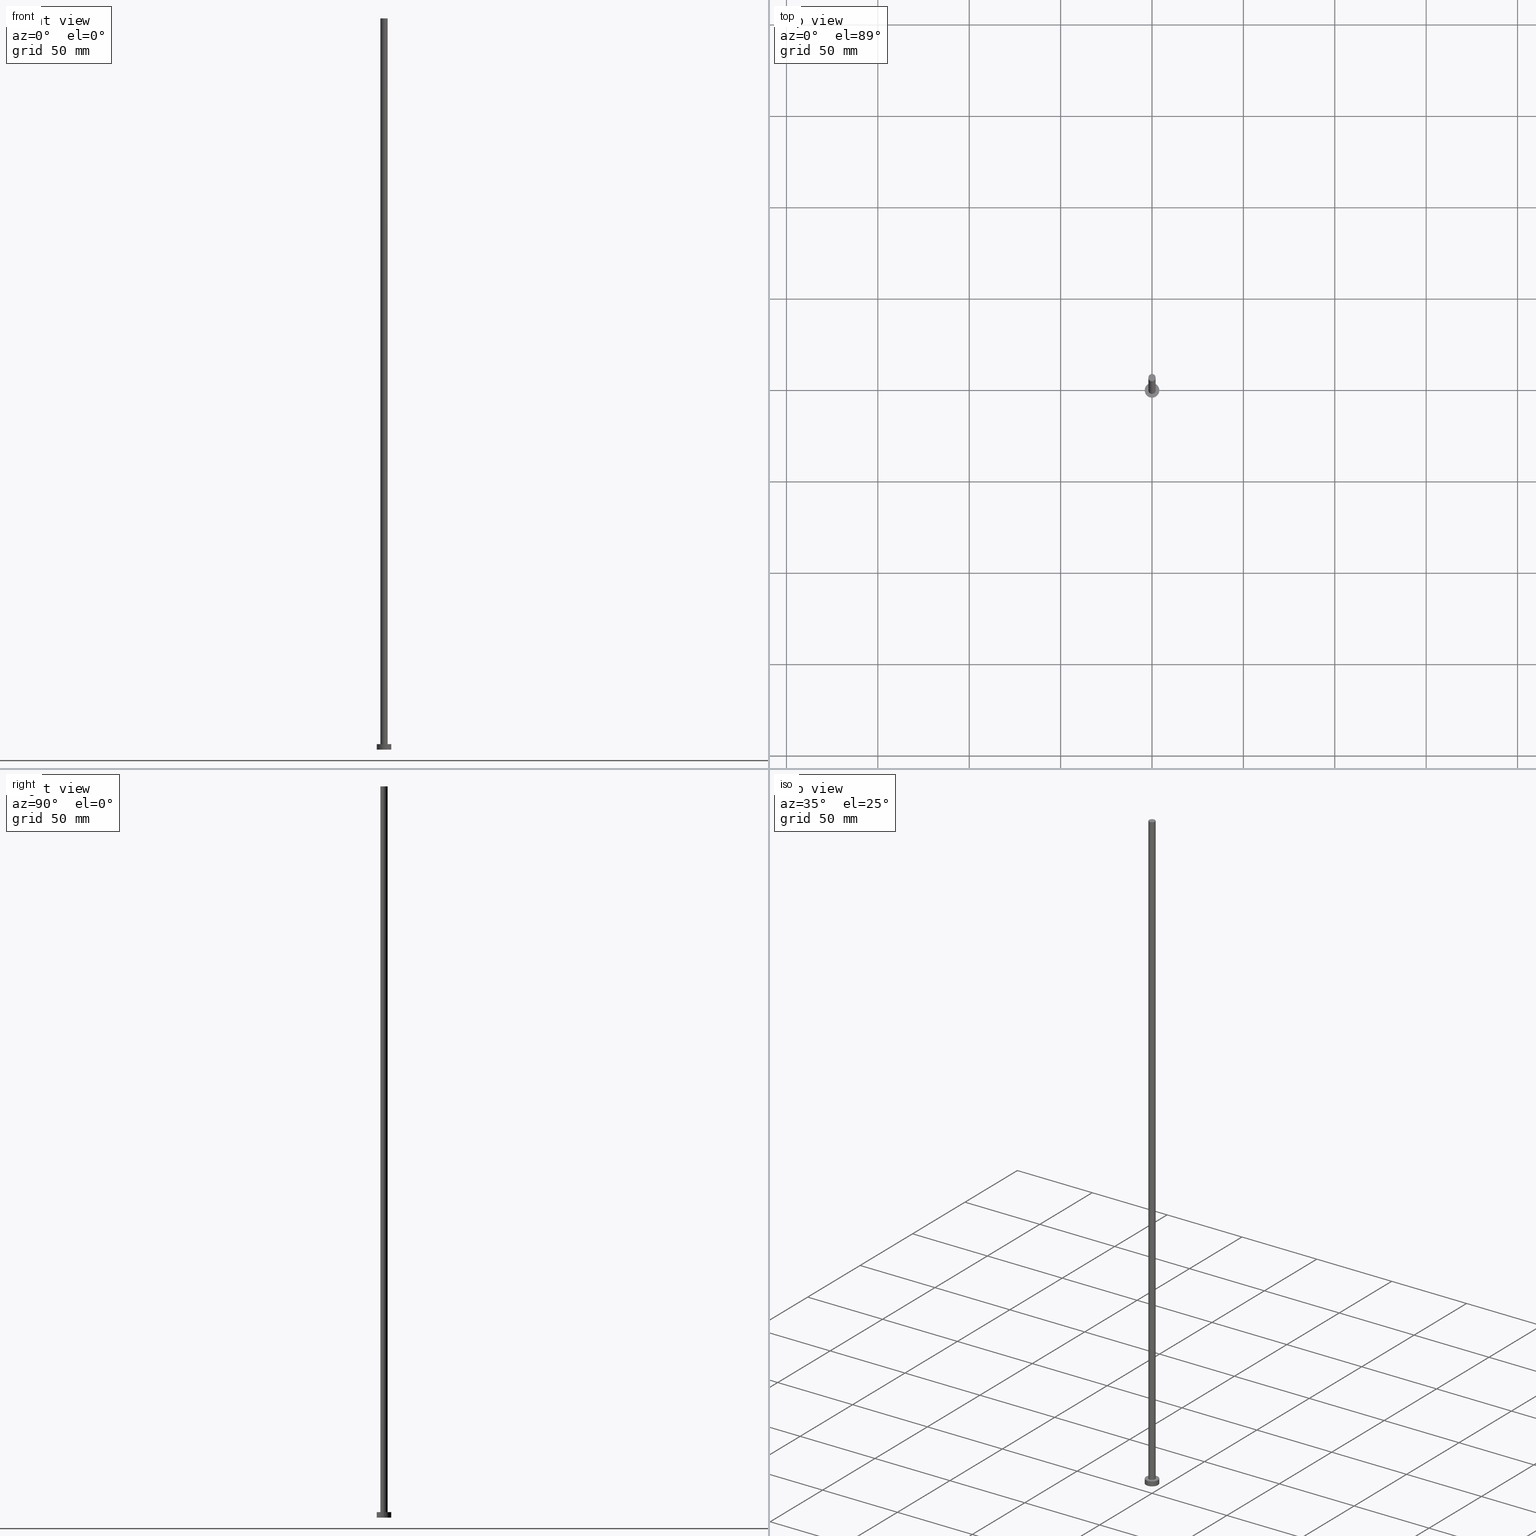
[diagram: canonical four-view strip — front | top / right | iso, engineering-drawing reading convention]
A machine part, canonical four-view strip (front | top / right | iso — engineering-drawing reading convention). The complete STEP part file that produces these views, byte-faithful:
ISO-10303-21;
HEADER;
FILE_DESCRIPTION (( 'STEP AP203' ),
    '1' );
FILE_NAME ('e3f3.STEP',
    '2023-02-13T13:57:01',
    ( '' ),
    ( '' ),
    'SwSTEP 2.0',
    'SolidWorks 2019',
    '' );
FILE_SCHEMA (( 'CONFIG_CONTROL_DESIGN' ));
ENDSEC;

DATA;
#1 = CYLINDRICAL_SURFACE ( 'NONE', #71, 4.000000000000000000 ) ;
#2 = FACE_BOUND ( 'NONE', #5, .T. ) ;
#3 = CARTESIAN_POINT ( 'NONE',  ( 0.000000000000000000, 0.000000000000000000, 3.000000000000000000 ) ) ;
#4 = DIRECTION ( 'NONE',  ( -0.000000000000000000, -0.000000000000000000, -1.000000000000000000 ) ) ;
#5 = EDGE_LOOP ( 'NONE', ( #96, #219 ) ) ;
#6 = PLANE ( 'NONE',  #126 ) ;
#7 = CARTESIAN_POINT ( 'NONE',  ( 0.000000000000000000, 0.000000000000000000, 400.0000000000000000 ) ) ;
#8 = VERTEX_POINT ( 'NONE', #247 ) ;
#9 = ORIENTED_EDGE ( 'NONE', *, *, #135, .T. ) ;
#10 = DIRECTION ( 'NONE',  ( 0.000000000000000000, 0.000000000000000000, 1.000000000000000000 ) ) ;
#11 = EDGE_CURVE ( 'NONE', #8, #79, #64, .T. ) ;
#12 = DESIGN_CONTEXT ( 'detailed design', #209, 'design' ) ;
#13 = PERSON_AND_ORGANIZATION_ROLE ( 'creator' ) ;
#14 =( GEOMETRIC_REPRESENTATION_CONTEXT ( 3 ) GLOBAL_UNCERTAINTY_ASSIGNED_CONTEXT ( ( #103 ) ) GLOBAL_UNIT_ASSIGNED_CONTEXT ( ( #221, #104, #167 ) ) REPRESENTATION_CONTEXT ( 'NONE', 'WORKASPACE' ) );
#15 = PERSON_AND_ORGANIZATION_ROLE ( 'classification_officer' ) ;
#16 = AXIS2_PLACEMENT_3D ( 'NONE', #107, #176, #128 ) ;
#17 = CARTESIAN_POINT ( 'NONE',  ( 2.000000000000000000, 2.449293598294706414E-16, 3.000000000000000000 ) ) ;
#18 = DIRECTION ( 'NONE',  ( -1.000000000000000000, 0.000000000000000000, 0.000000000000000000 ) ) ;
#19 = FACE_OUTER_BOUND ( 'NONE', #25, .T. ) ;
#20 = DIRECTION ( 'NONE',  ( -0.000000000000000000, -0.000000000000000000, -1.000000000000000000 ) ) ;
#21 = LINE ( 'NONE', #217, #249 ) ;
#22 = ORIENTED_EDGE ( 'NONE', *, *, #47, .T. ) ;
#23 = APPROVAL_PERSON_ORGANIZATION ( #229, #48, #191 ) ;
#24 = FACE_OUTER_BOUND ( 'NONE', #155, .T. ) ;
#25 = EDGE_LOOP ( 'NONE', ( #222, #140, #159, #243 ) ) ;
#26 = PLANE ( 'NONE',  #136 ) ;
#27 = VERTEX_POINT ( 'NONE', #120 ) ;
#28 = CC_DESIGN_PERSON_AND_ORGANIZATION_ASSIGNMENT ( #151, #15, ( #224 ) ) ;
#29 = CC_DESIGN_APPROVAL ( #177, ( #220 ) ) ;
#30 = CARTESIAN_POINT ( 'NONE',  ( 0.000000000000000000, 0.000000000000000000, 400.0000000000000000 ) ) ;
#31 = MECHANICAL_CONTEXT ( 'NONE', #171, 'mechanical' ) ;
#32 = CIRCLE ( 'NONE', #83, 4.000000000000000000 ) ;
#33 = ADVANCED_BREP_SHAPE_REPRESENTATION ( 'e3f3', ( #190, #226 ), #14 ) ;
#34 = CALENDAR_DATE ( 2023, 13, 2 ) ;
#35 = EDGE_CURVE ( 'NONE', #79, #43, #98, .T. ) ;
#36 = DIRECTION ( 'NONE',  ( 0.000000000000000000, 0.000000000000000000, 1.000000000000000000 ) ) ;
#37 = CARTESIAN_POINT ( 'NONE',  ( -4.000000000000000000, 0.000000000000000000, 3.000000000000000000 ) ) ;
#38 = CC_DESIGN_APPROVAL ( #44, ( #245 ) ) ;
#39 = DIRECTION ( 'NONE',  ( -1.000000000000000000, 0.000000000000000000, 0.000000000000000000 ) ) ;
#40 = ORIENTED_EDGE ( 'NONE', *, *, #207, .F. ) ;
#41 = DIRECTION ( 'NONE',  ( 1.000000000000000000, 0.000000000000000000, 0.000000000000000000 ) ) ;
#42 = ORIENTED_EDGE ( 'NONE', *, *, #82, .F. ) ;
#43 = VERTEX_POINT ( 'NONE', #180 ) ;
#44 = APPROVAL ( #88, 'NEUR�EN�' ) ;
#45 = CARTESIAN_POINT ( 'NONE',  ( 2.000000000000000000, 2.449293598294706414E-16, 400.0000000000000000 ) ) ;
#46 = CIRCLE ( 'NONE', #182, 2.000000000000000000 ) ;
#47 = EDGE_CURVE ( 'NONE', #43, #79, #237, .T. ) ;
#48 = APPROVAL ( #90, 'NEUR�EN�' ) ;
#49 = CALENDAR_DATE ( 2023, 13, 2 ) ;
#50 = COORDINATED_UNIVERSAL_TIME_OFFSET ( 1, 0, .AHEAD. ) ;
#51 = FACE_OUTER_BOUND ( 'NONE', #162, .T. ) ;
#52 = AXIS2_PLACEMENT_3D ( 'NONE', #255, #36, #70 ) ;
#53 = DATE_AND_TIME ( #34, #92 ) ;
#54 = CARTESIAN_POINT ( 'NONE',  ( -2.000000000000000000, 0.000000000000000000, 400.0000000000000000 ) ) ;
#55 = EDGE_CURVE ( 'NONE', #216, #119, #244, .T. ) ;
#56 = PERSON_AND_ORGANIZATION_ROLE ( 'creator' ) ;
#57 = CARTESIAN_POINT ( 'NONE',  ( 0.000000000000000000, 0.000000000000000000, 3.000000000000000000 ) ) ;
#58 = FACE_OUTER_BOUND ( 'NONE', #239, .T. ) ;
#59 = FACE_OUTER_BOUND ( 'NONE', #114, .T. ) ;
#60 = ORIENTED_EDGE ( 'NONE', *, *, #55, .T. ) ;
#61 = FACE_OUTER_BOUND ( 'NONE', #97, .T. ) ;
#62 = LOCAL_TIME ( 14, 57, 1.000000000000000000, #145 ) ;
#63 = CARTESIAN_POINT ( 'NONE',  ( 4.000000000000000000, 4.898587196589412829E-16, 0.000000000000000000 ) ) ;
#64 = LINE ( 'NONE', #45, #87 ) ;
#65 = AXIS2_PLACEMENT_3D ( 'NONE', #156, #4, #39 ) ;
#66 = CARTESIAN_POINT ( 'NONE',  ( 0.000000000000000000, 0.000000000000000000, 0.000000000000000000 ) ) ;
#67 = COORDINATED_UNIVERSAL_TIME_OFFSET ( 1, 0, .AHEAD. ) ;
#68 = APPROVAL_DATE_TIME ( #175, #44 ) ;
#69 = DATE_AND_TIME ( #193, #62 ) ;
#70 = DIRECTION ( 'NONE',  ( 1.000000000000000000, 0.000000000000000000, 0.000000000000000000 ) ) ;
#71 = AXIS2_PLACEMENT_3D ( 'NONE', #147, #197, #153 ) ;
#72 = EDGE_CURVE ( 'NONE', #134, #119, #149, .T. ) ;
#73 = PERSON_AND_ORGANIZATION ( #115, #144 ) ;
#74 = CYLINDRICAL_SURFACE ( 'NONE', #160, 2.000000000000000000 ) ;
#75 = EDGE_CURVE ( 'NONE', #200, #43, #111, .T. ) ;
#76 = CARTESIAN_POINT ( 'NONE',  ( -2.000000000000000000, 0.000000000000000000, 400.0000000000000000 ) ) ;
#77 = APPROVAL_PERSON_ORGANIZATION ( #228, #177, #227 ) ;
#78 = ORIENTED_EDGE ( 'NONE', *, *, #72, .T. ) ;
#79 = VERTEX_POINT ( 'NONE', #17 ) ;
#80 = DIRECTION ( 'NONE',  ( 0.000000000000000000, 0.000000000000000000, 1.000000000000000000 ) ) ;
#81 = ORIENTED_EDGE ( 'NONE', *, *, #55, .F. ) ;
#82 = EDGE_CURVE ( 'NONE', #119, #216, #201, .T. ) ;
#83 = AXIS2_PLACEMENT_3D ( 'NONE', #137, #102, #139 ) ;
#84 = ORIENTED_EDGE ( 'NONE', *, *, #75, .T. ) ;
#85 = APPLICATION_PROTOCOL_DEFINITION ( 'international standard', 'config_control_design', 1994, #171 ) ;
#86 = ADVANCED_FACE ( 'NONE', ( #51 ), #74, .T. ) ;
#87 = VECTOR ( 'NONE', #20, 1000.000000000000000 ) ;
#88 = APPROVAL_STATUS ( 'not_yet_approved' ) ;
#89 = SECURITY_CLASSIFICATION_LEVEL ( 'unclassified' ) ;
#90 = APPROVAL_STATUS ( 'not_yet_approved' ) ;
#91 = ADVANCED_FACE ( 'NONE', ( #178 ), #1, .T. ) ;
#92 = LOCAL_TIME ( 14, 57, 1.000000000000000000, #174 ) ;
#93 = CARTESIAN_POINT ( 'NONE',  ( 0.000000000000000000, 0.000000000000000000, 0.000000000000000000 ) ) ;
#94 = ORIENTED_EDGE ( 'NONE', *, *, #207, .T. ) ;
#95 = LOCAL_TIME ( 14, 57, 1.000000000000000000, #50 ) ;
#96 = ORIENTED_EDGE ( 'NONE', *, *, #47, .F. ) ;
#97 = EDGE_LOOP ( 'NONE', ( #184, #9 ) ) ;
#98 = CIRCLE ( 'NONE', #166, 2.000000000000000000 ) ;
#99 = EDGE_LOOP ( 'NONE', ( #138, #40, #78, #203 ) ) ;
#100 = AXIS2_PLACEMENT_3D ( 'NONE', #93, #179, #202 ) ;
#101 = ADVANCED_FACE ( 'NONE', ( #19 ), #199, .T. ) ;
#102 = DIRECTION ( 'NONE',  ( 0.000000000000000000, 0.000000000000000000, 1.000000000000000000 ) ) ;
#103 = UNCERTAINTY_MEASURE_WITH_UNIT (LENGTH_MEASURE( 1.000000000000000082E-05 ), #221, 'distance_accuracy_value', 'NONE');
#104 =( NAMED_UNIT ( * ) PLANE_ANGLE_UNIT ( ) SI_UNIT ( $, .RADIAN. ) );
#105 = CARTESIAN_POINT ( 'NONE',  ( 0.000000000000000000, 0.000000000000000000, 400.0000000000000000 ) ) ;
#106 = APPROVAL_STATUS ( 'not_yet_approved' ) ;
#107 = CARTESIAN_POINT ( 'NONE',  ( 0.000000000000000000, 0.000000000000000000, 0.000000000000000000 ) ) ;
#108 = PERSON_AND_ORGANIZATION ( #115, #144 ) ;
#109 = PRODUCT_DEFINITION_SHAPE ( 'NONE', 'NONE',  #220 ) ;
#110 = DATE_TIME_ROLE ( 'creation_date' ) ;
#111 = LINE ( 'NONE', #54, #211 ) ;
#112 = CIRCLE ( 'NONE', #185, 2.000000000000000000 ) ;
#113 = CC_DESIGN_PERSON_AND_ORGANIZATION_ASSIGNMENT ( #73, #146, ( #245 ) ) ;
#114 = EDGE_LOOP ( 'NONE', ( #42, #81 ) ) ;
#115 = PERSON ( 'NEUR�EN�', 'NEUR�EN�', 'NEUR�EN�', ('NEUR�EN�'), ('NEUR�EN�'), ('NEUR�EN�') ) ;
#116 = CARTESIAN_POINT ( 'NONE',  ( 0.000000000000000000, 0.000000000000000000, 3.000000000000000000 ) ) ;
#117 = DIRECTION ( 'NONE',  ( -0.000000000000000000, -0.000000000000000000, -1.000000000000000000 ) ) ;
#118 = ORIENTED_EDGE ( 'NONE', *, *, #152, .T. ) ;
#119 = VERTEX_POINT ( 'NONE', #240 ) ;
#120 = CARTESIAN_POINT ( 'NONE',  ( 4.000000000000000000, 4.898587196589412829E-16, 3.000000000000000000 ) ) ;
#121 = CC_DESIGN_SECURITY_CLASSIFICATION ( #224, ( #245 ) ) ;
#122 = APPLICATION_PROTOCOL_DEFINITION ( 'international standard', 'config_control_design', 1994, #209 ) ;
#123 = DATE_TIME_ROLE ( 'classification_date' ) ;
#124 = DATE_AND_TIME ( #148, #233 ) ;
#125 = LOCAL_TIME ( 14, 57, 1.000000000000000000, #173 ) ;
#126 = AXIS2_PLACEMENT_3D ( 'NONE', #57, #129, #214 ) ;
#127 = APPROVAL_ROLE ( '' ) ;
#128 = DIRECTION ( 'NONE',  ( 1.000000000000000000, 0.000000000000000000, 0.000000000000000000 ) ) ;
#129 = DIRECTION ( 'NONE',  ( 0.000000000000000000, 0.000000000000000000, 1.000000000000000000 ) ) ;
#130 = AXIS2_PLACEMENT_3D ( 'NONE', #154, #238, #158 ) ;
#131 = CYLINDRICAL_SURFACE ( 'NONE', #65, 4.000000000000000000 ) ;
#132 = ORIENTED_EDGE ( 'NONE', *, *, #11, .F. ) ;
#133 = CARTESIAN_POINT ( 'NONE',  ( 0.000000000000000000, 0.000000000000000000, 400.0000000000000000 ) ) ;
#134 = VERTEX_POINT ( 'NONE', #204 ) ;
#135 = EDGE_CURVE ( 'NONE', #8, #200, #112, .T. ) ;
#136 = AXIS2_PLACEMENT_3D ( 'NONE', #7, #80, #161 ) ;
#137 = CARTESIAN_POINT ( 'NONE',  ( 0.000000000000000000, 0.000000000000000000, 3.000000000000000000 ) ) ;
#138 = ORIENTED_EDGE ( 'NONE', *, *, #152, .F. ) ;
#139 = DIRECTION ( 'NONE',  ( 1.000000000000000000, 0.000000000000000000, 0.000000000000000000 ) ) ;
#140 = ORIENTED_EDGE ( 'NONE', *, *, #11, .T. ) ;
#141 = DIRECTION ( 'NONE',  ( 0.000000000000000000, 0.000000000000000000, 1.000000000000000000 ) ) ;
#142 = ADVANCED_FACE ( 'NONE', ( #58 ), #131, .T. ) ;
#143 = AXIS2_PLACEMENT_3D ( 'NONE', #133, #236, #218 ) ;
#144 = ORGANIZATION ( 'NEUR�EN�', 'NEUR�EN�', '' ) ;
#145 = COORDINATED_UNIVERSAL_TIME_OFFSET ( 1, 0, .AHEAD. ) ;
#146 = PERSON_AND_ORGANIZATION_ROLE ( 'design_supplier' ) ;
#147 = CARTESIAN_POINT ( 'NONE',  ( 0.000000000000000000, 0.000000000000000000, 3.000000000000000000 ) ) ;
#148 = CALENDAR_DATE ( 2023, 13, 2 ) ;
#149 = LINE ( 'NONE', #37, #223 ) ;
#150 = PRODUCT ( 'e3f3', 'e3f3', '', ( #31 ) ) ;
#151 = PERSON_AND_ORGANIZATION ( #115, #144 ) ;
#152 = EDGE_CURVE ( 'NONE', #27, #216, #21, .T. ) ;
#153 = DIRECTION ( 'NONE',  ( -1.000000000000000000, 0.000000000000000000, 0.000000000000000000 ) ) ;
#154 = CARTESIAN_POINT ( 'NONE',  ( 0.000000000000000000, 0.000000000000000000, 3.000000000000000000 ) ) ;
#155 = EDGE_LOOP ( 'NONE', ( #94, #198 ) ) ;
#156 = CARTESIAN_POINT ( 'NONE',  ( 0.000000000000000000, 0.000000000000000000, 3.000000000000000000 ) ) ;
#157 = DIRECTION ( 'NONE',  ( 0.000000000000000000, 0.000000000000000000, 1.000000000000000000 ) ) ;
#158 = DIRECTION ( 'NONE',  ( 1.000000000000000000, 0.000000000000000000, 0.000000000000000000 ) ) ;
#159 = ORIENTED_EDGE ( 'NONE', *, *, #35, .T. ) ;
#160 = AXIS2_PLACEMENT_3D ( 'NONE', #105, #196, #18 ) ;
#161 = DIRECTION ( 'NONE',  ( 1.000000000000000000, 0.000000000000000000, -0.000000000000000000 ) ) ;
#162 = EDGE_LOOP ( 'NONE', ( #132, #205, #84, #22 ) ) ;
#163 = CIRCLE ( 'NONE', #130, 4.000000000000000000 ) ;
#164 = CC_DESIGN_PERSON_AND_ORGANIZATION_ASSIGNMENT ( #108, #13, ( #245 ) ) ;
#165 = ORIENTED_EDGE ( 'NONE', *, *, #232, .F. ) ;
#166 = AXIS2_PLACEMENT_3D ( 'NONE', #116, #157, #186 ) ;
#167 =( NAMED_UNIT ( * ) SI_UNIT ( $, .STERADIAN. ) SOLID_ANGLE_UNIT ( ) );
#168 = ADVANCED_FACE ( 'NONE', ( #59 ), #242, .F. ) ;
#169 = PRODUCT_RELATED_PRODUCT_CATEGORY ( 'detail', '', ( #150 ) ) ;
#170 = DATE_AND_TIME ( #251, #95 ) ;
#171 = APPLICATION_CONTEXT ( 'configuration controlled 3d designs of mechanical parts and assemblies' ) ;
#172 = CC_DESIGN_APPROVAL ( #48, ( #224 ) ) ;
#173 = COORDINATED_UNIVERSAL_TIME_OFFSET ( 1, 0, .AHEAD. ) ;
#174 = COORDINATED_UNIVERSAL_TIME_OFFSET ( 1, 0, .AHEAD. ) ;
#175 = DATE_AND_TIME ( #49, #125 ) ;
#176 = DIRECTION ( 'NONE',  ( 0.000000000000000000, 0.000000000000000000, 1.000000000000000000 ) ) ;
#177 = APPROVAL ( #106, 'NEUR�EN�' ) ;
#178 = FACE_OUTER_BOUND ( 'NONE', #99, .T. ) ;
#179 = DIRECTION ( 'NONE',  ( 0.000000000000000000, 0.000000000000000000, 1.000000000000000000 ) ) ;
#180 = CARTESIAN_POINT ( 'NONE',  ( -2.000000000000000000, 0.000000000000000000, 3.000000000000000000 ) ) ;
#181 = ADVANCED_FACE ( 'NONE', ( #2, #24 ), #6, .T. ) ;
#182 = AXIS2_PLACEMENT_3D ( 'NONE', #30, #10, #187 ) ;
#183 = ORIENTED_EDGE ( 'NONE', *, *, #72, .F. ) ;
#184 = ORIENTED_EDGE ( 'NONE', *, *, #254, .T. ) ;
#185 = AXIS2_PLACEMENT_3D ( 'NONE', #246, #215, #41 ) ;
#186 = DIRECTION ( 'NONE',  ( 1.000000000000000000, 0.000000000000000000, 0.000000000000000000 ) ) ;
#187 = DIRECTION ( 'NONE',  ( 1.000000000000000000, 0.000000000000000000, 0.000000000000000000 ) ) ;
#188 = DIRECTION ( 'NONE',  ( 1.000000000000000000, 0.000000000000000000, 0.000000000000000000 ) ) ;
#189 = CC_DESIGN_DATE_AND_TIME_ASSIGNMENT ( #69, #110, ( #220 ) ) ;
#190 = MANIFOLD_SOLID_BREP ( 'P�idat vysunut�m3', #195 ) ;
#191 = APPROVAL_ROLE ( '' ) ;
#192 = APPROVAL_PERSON_ORGANIZATION ( #234, #44, #127 ) ;
#193 = CALENDAR_DATE ( 2023, 13, 2 ) ;
#194 = DIRECTION ( 'NONE',  ( -0.000000000000000000, -0.000000000000000000, -1.000000000000000000 ) ) ;
#195 = CLOSED_SHELL ( 'NONE', ( #101, #142, #91, #181, #168, #86, #213 ) ) ;
#196 = DIRECTION ( 'NONE',  ( -0.000000000000000000, -0.000000000000000000, -1.000000000000000000 ) ) ;
#197 = DIRECTION ( 'NONE',  ( -0.000000000000000000, -0.000000000000000000, -1.000000000000000000 ) ) ;
#198 = ORIENTED_EDGE ( 'NONE', *, *, #232, .T. ) ;
#199 = CYLINDRICAL_SURFACE ( 'NONE', #143, 2.000000000000000000 ) ;
#200 = VERTEX_POINT ( 'NONE', #76 ) ;
#201 = CIRCLE ( 'NONE', #16, 4.000000000000000000 ) ;
#202 = DIRECTION ( 'NONE',  ( 1.000000000000000000, 0.000000000000000000, -0.000000000000000000 ) ) ;
#203 = ORIENTED_EDGE ( 'NONE', *, *, #82, .T. ) ;
#204 = CARTESIAN_POINT ( 'NONE',  ( -4.000000000000000000, 0.000000000000000000, 3.000000000000000000 ) ) ;
#205 = ORIENTED_EDGE ( 'NONE', *, *, #254, .F. ) ;
#206 = CC_DESIGN_PERSON_AND_ORGANIZATION_ASSIGNMENT ( #252, #56, ( #220 ) ) ;
#207 = EDGE_CURVE ( 'NONE', #134, #27, #163, .T. ) ;
#208 = APPROVAL_DATE_TIME ( #170, #177 ) ;
#209 = APPLICATION_CONTEXT ( 'configuration controlled 3d designs of mechanical parts and assemblies' ) ;
#210 = SHAPE_DEFINITION_REPRESENTATION ( #109, #33 ) ;
#211 = VECTOR ( 'NONE', #194, 1000.000000000000000 ) ;
#212 = DIRECTION ( 'NONE',  ( 1.000000000000000000, 0.000000000000000000, 0.000000000000000000 ) ) ;
#213 = ADVANCED_FACE ( 'NONE', ( #61 ), #26, .T. ) ;
#214 = DIRECTION ( 'NONE',  ( 1.000000000000000000, 0.000000000000000000, -0.000000000000000000 ) ) ;
#215 = DIRECTION ( 'NONE',  ( 0.000000000000000000, 0.000000000000000000, 1.000000000000000000 ) ) ;
#216 = VERTEX_POINT ( 'NONE', #63 ) ;
#217 = CARTESIAN_POINT ( 'NONE',  ( 4.000000000000000000, 4.898587196589412829E-16, 3.000000000000000000 ) ) ;
#218 = DIRECTION ( 'NONE',  ( -1.000000000000000000, 0.000000000000000000, 0.000000000000000000 ) ) ;
#219 = ORIENTED_EDGE ( 'NONE', *, *, #35, .F. ) ;
#220 = PRODUCT_DEFINITION ( 'NEZN�M�', '', #245, #12 ) ;
#221 =( LENGTH_UNIT ( ) NAMED_UNIT ( * ) SI_UNIT ( .MILLI., .METRE. ) );
#222 = ORIENTED_EDGE ( 'NONE', *, *, #135, .F. ) ;
#223 = VECTOR ( 'NONE', #231, 1000.000000000000000 ) ;
#224 = SECURITY_CLASSIFICATION ( '', '', #89 ) ;
#225 = PERSON_AND_ORGANIZATION_ROLE ( 'design_owner' ) ;
#226 = AXIS2_PLACEMENT_3D ( 'NONE', #66, #141, #188 ) ;
#227 = APPROVAL_ROLE ( '' ) ;
#228 = PERSON_AND_ORGANIZATION ( #115, #144 ) ;
#229 = PERSON_AND_ORGANIZATION ( #115, #144 ) ;
#230 = AXIS2_PLACEMENT_3D ( 'NONE', #3, #241, #212 ) ;
#231 = DIRECTION ( 'NONE',  ( -0.000000000000000000, -0.000000000000000000, -1.000000000000000000 ) ) ;
#232 = EDGE_CURVE ( 'NONE', #27, #134, #32, .T. ) ;
#233 = LOCAL_TIME ( 14, 57, 1.000000000000000000, #67 ) ;
#234 = PERSON_AND_ORGANIZATION ( #115, #144 ) ;
#235 = CC_DESIGN_DATE_AND_TIME_ASSIGNMENT ( #53, #123, ( #224 ) ) ;
#236 = DIRECTION ( 'NONE',  ( -0.000000000000000000, -0.000000000000000000, -1.000000000000000000 ) ) ;
#237 = CIRCLE ( 'NONE', #230, 2.000000000000000000 ) ;
#238 = DIRECTION ( 'NONE',  ( 0.000000000000000000, 0.000000000000000000, 1.000000000000000000 ) ) ;
#239 = EDGE_LOOP ( 'NONE', ( #165, #118, #60, #183 ) ) ;
#240 = CARTESIAN_POINT ( 'NONE',  ( -4.000000000000000000, 0.000000000000000000, 0.000000000000000000 ) ) ;
#241 = DIRECTION ( 'NONE',  ( 0.000000000000000000, 0.000000000000000000, 1.000000000000000000 ) ) ;
#242 = PLANE ( 'NONE',  #100 ) ;
#243 = ORIENTED_EDGE ( 'NONE', *, *, #75, .F. ) ;
#244 = CIRCLE ( 'NONE', #52, 4.000000000000000000 ) ;
#245 = PRODUCT_DEFINITION_FORMATION_WITH_SPECIFIED_SOURCE ( 'LIBOVOLN�', '', #150, .NOT_KNOWN. ) ;
#246 = CARTESIAN_POINT ( 'NONE',  ( 0.000000000000000000, 0.000000000000000000, 400.0000000000000000 ) ) ;
#247 = CARTESIAN_POINT ( 'NONE',  ( 2.000000000000000000, 2.449293598294706414E-16, 400.0000000000000000 ) ) ;
#248 = CC_DESIGN_PERSON_AND_ORGANIZATION_ASSIGNMENT ( #250, #225, ( #150 ) ) ;
#249 = VECTOR ( 'NONE', #117, 1000.000000000000000 ) ;
#250 = PERSON_AND_ORGANIZATION ( #115, #144 ) ;
#251 = CALENDAR_DATE ( 2023, 13, 2 ) ;
#252 = PERSON_AND_ORGANIZATION ( #115, #144 ) ;
#253 = APPROVAL_DATE_TIME ( #124, #48 ) ;
#254 = EDGE_CURVE ( 'NONE', #200, #8, #46, .T. ) ;
#255 = CARTESIAN_POINT ( 'NONE',  ( 0.000000000000000000, 0.000000000000000000, 0.000000000000000000 ) ) ;
ENDSEC;
END-ISO-10303-21;
